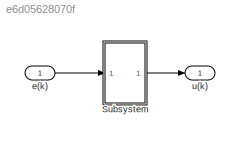
MODEL slx_e6d05628070f
KIND model
CONFIG AbsTol = auto
CONFIG FixedStep = auto
CONFIG MaxStep = auto
CONFIG MinStep = auto
CONFIG RelTol = 1e-3
CONFIG SampleTimeConstraint = Unconstrained
CONFIG Solver = ode45
CONFIG SolverMode = Auto
CONFIG SolverName = ode45
CONFIG StartTime = 0.0
CONFIG StopTime = 10.0
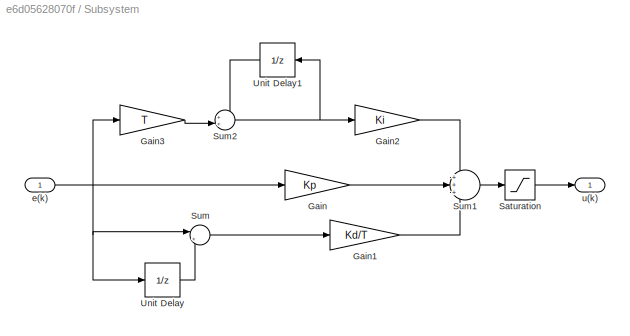
BLOCK [SubSystem] Subsystem
  Ports = [1, 1]
  RequestExecContextInheritance = off
  Variant = off
BLOCK [Gain] Subsystem/Gain
  Gain = Kp
  OutDataTypeStr = Inherit: Inherit via internal rule
  ParamDataTypeStr = Inherit: Inherit via internal rule
  SaturateOnIntegerOverflow = off
BLOCK [Gain] Subsystem/Gain1
  Gain = Kd/T
  OutDataTypeStr = Inherit: Inherit via internal rule
  ParamDataTypeStr = Inherit: Inherit via internal rule
  SaturateOnIntegerOverflow = off
BLOCK [Gain] Subsystem/Gain2
  Gain = Ki
  OutDataTypeStr = Inherit: Inherit via internal rule
  ParamDataTypeStr = Inherit: Inherit via internal rule
  SaturateOnIntegerOverflow = off
BLOCK [Gain] Subsystem/Gain3
  Gain = T
  OutDataTypeStr = Inherit: Inherit via internal rule
  ParamDataTypeStr = Inherit: Inherit via internal rule
  SaturateOnIntegerOverflow = off
BLOCK [Saturate] Subsystem/Saturation
  InputPortMap = u0
  LowerLimit = -U_m
  Ports = [1, 1]
  UpperLimit = U_m
BLOCK [Sum] Subsystem/Sum
  IconShape = round
  InputSameDT = off
  Inputs = |+-
  OutDataTypeStr = Inherit: Inherit via internal rule
  Ports = [2, 1]
  SaturateOnIntegerOverflow = off
BLOCK [Sum] Subsystem/Sum1
  IconShape = round
  InputSameDT = off
  Inputs = +++
  OutDataTypeStr = Inherit: Inherit via internal rule
  Ports = [3, 1]
  SaturateOnIntegerOverflow = off
BLOCK [Sum] Subsystem/Sum2
  IconShape = round
  InputSameDT = off
  Inputs = ++|
  OutDataTypeStr = Inherit: Inherit via internal rule
  Ports = [2, 1]
  SaturateOnIntegerOverflow = off
BLOCK [UnitDelay] Subsystem/Unit Delay
  SampleTime = -1
BLOCK [UnitDelay] Subsystem/Unit Delay1
  SampleTime = -1
BLOCK [Inport] Subsystem/e(k)
  IconDisplay = Port number
BLOCK [Outport] Subsystem/u(k) 
  IconDisplay = Port number
BLOCK [Inport] e(k)
  IconDisplay = Port number
BLOCK [Outport] u(k) 
  IconDisplay = Port number
LINE Subsystem/Gain1:1 -> Subsystem/Sum1:3
LINE Subsystem/Gain2:1 -> Subsystem/Sum1:1
LINE Subsystem/Gain3:1 -> Subsystem/Sum2:2
LINE Subsystem/Gain:1 -> Subsystem/Sum1:2
LINE Subsystem/Saturation:1 -> Subsystem/u(k) :1
LINE Subsystem/Sum1:1 -> Subsystem/Saturation:1
NET Subsystem/Sum2:1 -> Subsystem/Gain2:1, Subsystem/Unit Delay1:1
LINE Subsystem/Sum:1 -> Subsystem/Gain1:1
LINE Subsystem/Unit Delay1:1 -> Subsystem/Sum2:1
LINE Subsystem/Unit Delay:1 -> Subsystem/Sum:2
NET Subsystem/e(k):1 -> Subsystem/Gain3:1, Subsystem/Gain:1, Subsystem/Sum:1, Subsystem/Unit Delay:1
LINE Subsystem:1 -> u(k) :1
LINE e(k):1 -> Subsystem:1
note: NET lines group one-source signal fan-out (src -> all destinations, sorted); 1:1 wires keep LINE
